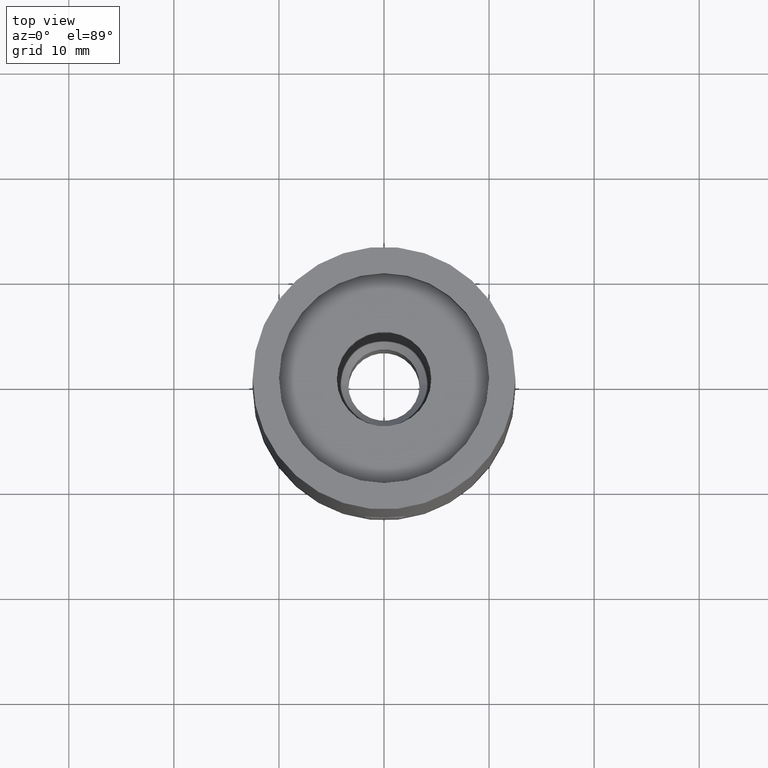
[diagram: clean part render]
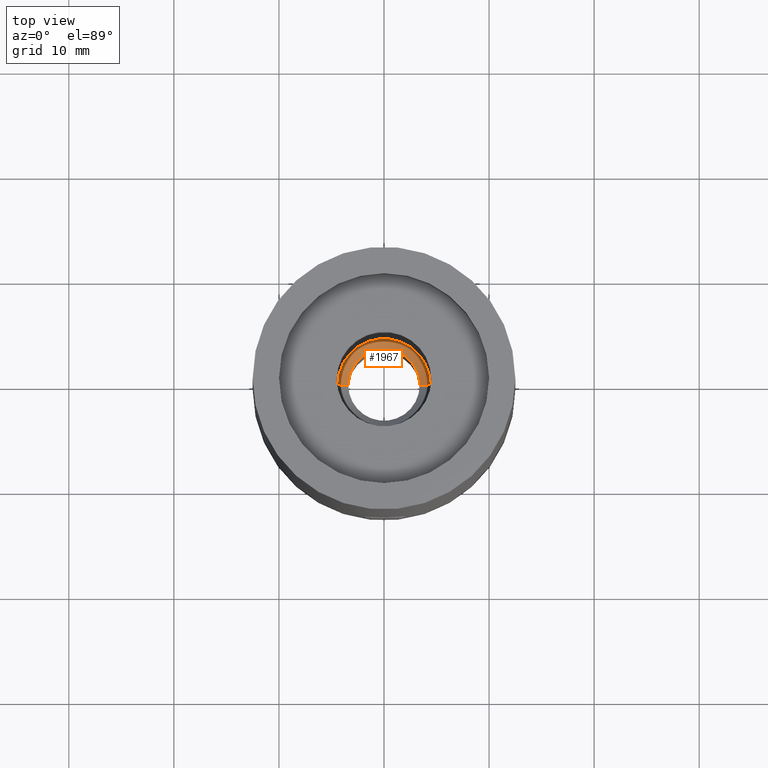
[diagram: same view with one face highlighted and labeled with its STEP entity id]
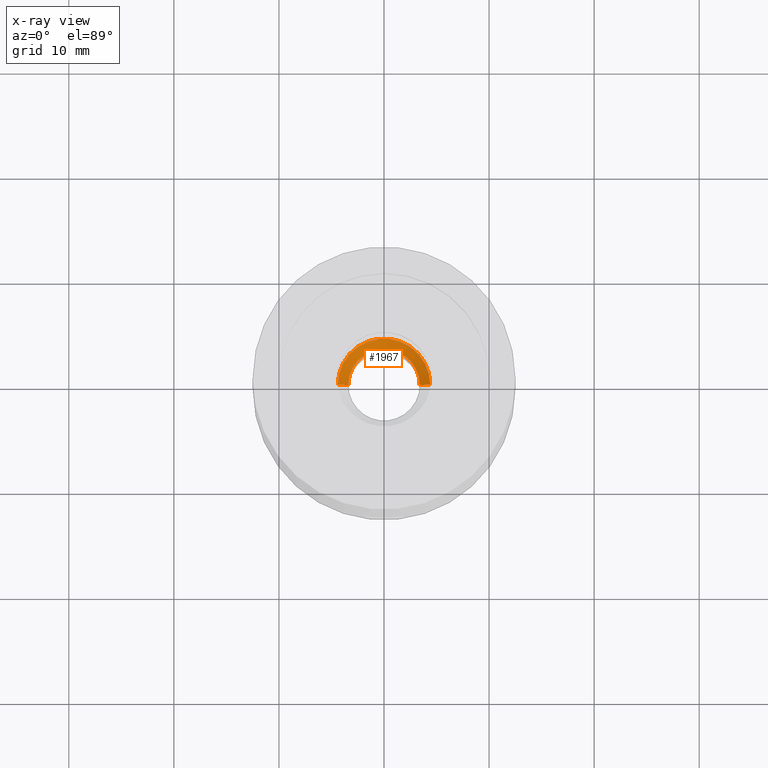
[diagram: x-ray of the same camera — body ghosted, the highlighted face saturated]
A machine part, top view. The second image highlights one B-rep face of the part: STEP entity #1967.
The next image is the same camera in x-ray: the body ghosted, the highlighted face saturated — about 0% of this face is hidden behind the body in this view.
In plain terms, the highlighted conical surface has half-angle 45 deg.
Its self-contained STEP definition (entity closure, byte-faithful):
#489 = EDGE_LOOP ( 'NONE', ( #823, #11641, #1779, #8298 ) ) ;
#680 = EDGE_CURVE ( 'NONE', #6764, #9145, #6189, .T. ) ;
#823 = ORIENTED_EDGE ( 'NONE', *, *, #9762, .F. ) ;
#1120 = DIRECTION ( 'NONE',  ( 0.0000000000000000000, -1.000000000000000000, 6.563074804307201300E-018 ) ) ;
#1708 = DIRECTION ( 'NONE',  ( 1.000000000000000000, 0.0000000000000000000, 0.0000000000000000000 ) ) ;
#1779 = ORIENTED_EDGE ( 'NONE', *, *, #680, .T. ) ;
#1903 = CARTESIAN_POINT ( 'NONE',  ( 3.399999999999991500, 0.0000000000000000000, -0.9999999999999940000 ) ) ;
#1967 = ADVANCED_FACE ( 'NONE', ( #12918 ), #2009, .F. ) ;
#2007 = VECTOR ( 'NONE', #3719, 1000.000000000000000 ) ;
#2009 = CONICAL_SURFACE ( 'NONE', #5658, 3.399999999999991500, 0.7853981633974492800 ) ;
#2310 = CARTESIAN_POINT ( 'NONE',  ( 0.0000000000000000000, 0.0000000000000000000, 0.0000000000000000000 ) ) ;
#3049 = DIRECTION ( 'NONE',  ( 0.0000000000000000000, 0.0000000000000000000, 1.000000000000000000 ) ) ;
#3491 = LINE ( 'NONE', #9617, #11643 ) ;
#3719 = DIRECTION ( 'NONE',  ( 0.7071067811865483500, 0.0000000000000000000, 0.7071067811865468000 ) ) ;
#4084 = DIRECTION ( 'NONE',  ( 1.000000000000000000, 0.0000000000000000000, 0.0000000000000000000 ) ) ;
#4515 = CIRCLE ( 'NONE', #9589, 3.399999999999991500 ) ;
#5137 = CARTESIAN_POINT ( 'NONE',  ( 0.0000000000000000000, 0.0000000000000000000, -0.9999999999999940000 ) ) ;
#5658 = AXIS2_PLACEMENT_3D ( 'NONE', #5909, #9124, #1708 ) ;
#5909 = CARTESIAN_POINT ( 'NONE',  ( 0.0000000000000000000, 0.0000000000000000000, -0.9999999999999940000 ) ) ;
#5988 = EDGE_CURVE ( 'NONE', #6764, #9062, #4515, .T. ) ;
#6189 = LINE ( 'NONE', #9878, #2007 ) ;
#6764 = VERTEX_POINT ( 'NONE', #1903 ) ;
#7403 = VERTEX_POINT ( 'NONE', #9251 ) ;
#8298 = ORIENTED_EDGE ( 'NONE', *, *, #13223, .F. ) ;
#9062 = VERTEX_POINT ( 'NONE', #12736 ) ;
#9124 = DIRECTION ( 'NONE',  ( 0.0000000000000000000, 0.0000000000000000000, 1.000000000000000000 ) ) ;
#9145 = VERTEX_POINT ( 'NONE', #10012 ) ;
#9251 = CARTESIAN_POINT ( 'NONE',  ( -4.399999999999987000, 5.388445916248338200E-016, 0.0000000000000000000 ) ) ;
#9589 = AXIS2_PLACEMENT_3D ( 'NONE', #5137, #3049, #4084 ) ;
#9598 = DIRECTION ( 'NONE',  ( -0.0000000000000000000, -6.563074804307201300E-018, -1.000000000000000000 ) ) ;
#9617 = CARTESIAN_POINT ( 'NONE',  ( -3.399999999999991500, 4.163799117100990700E-016, -0.9999999999999940000 ) ) ;
#9762 = EDGE_CURVE ( 'NONE', #9062, #7403, #3491, .T. ) ;
#9878 = CARTESIAN_POINT ( 'NONE',  ( 3.399999999999991500, 0.0000000000000000000, -0.9999999999999940000 ) ) ;
#10012 = CARTESIAN_POINT ( 'NONE',  ( 4.399999999999987000, 0.0000000000000000000, 0.0000000000000000000 ) ) ;
#11389 = DIRECTION ( 'NONE',  ( -0.7071067811865483500, 8.659560562354944000E-017, 0.7071067811865468000 ) ) ;
#11641 = ORIENTED_EDGE ( 'NONE', *, *, #5988, .F. ) ;
#11643 = VECTOR ( 'NONE', #11389, 1000.000000000000000 ) ;
#11920 = CIRCLE ( 'NONE', #12576, 4.399999999999990600 ) ;
#12576 = AXIS2_PLACEMENT_3D ( 'NONE', #2310, #9598, #1120 ) ;
#12736 = CARTESIAN_POINT ( 'NONE',  ( -3.399999999999991500, 4.163799117100990700E-016, -0.9999999999999940000 ) ) ;
#12918 = FACE_OUTER_BOUND ( 'NONE', #489, .T. ) ;
#13223 = EDGE_CURVE ( 'NONE', #7403, #9145, #11920, .T. ) ;